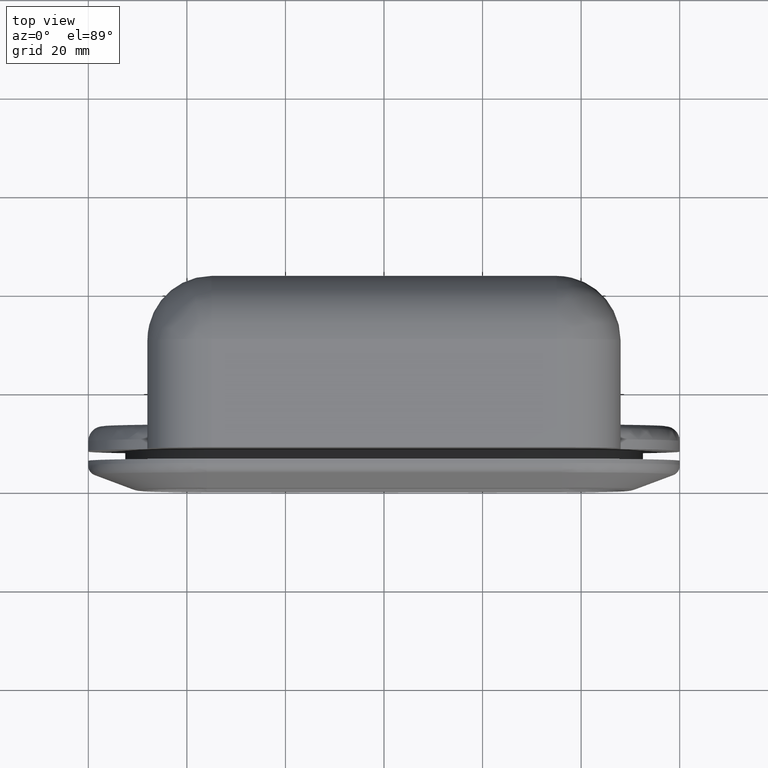
[diagram: clean part render]
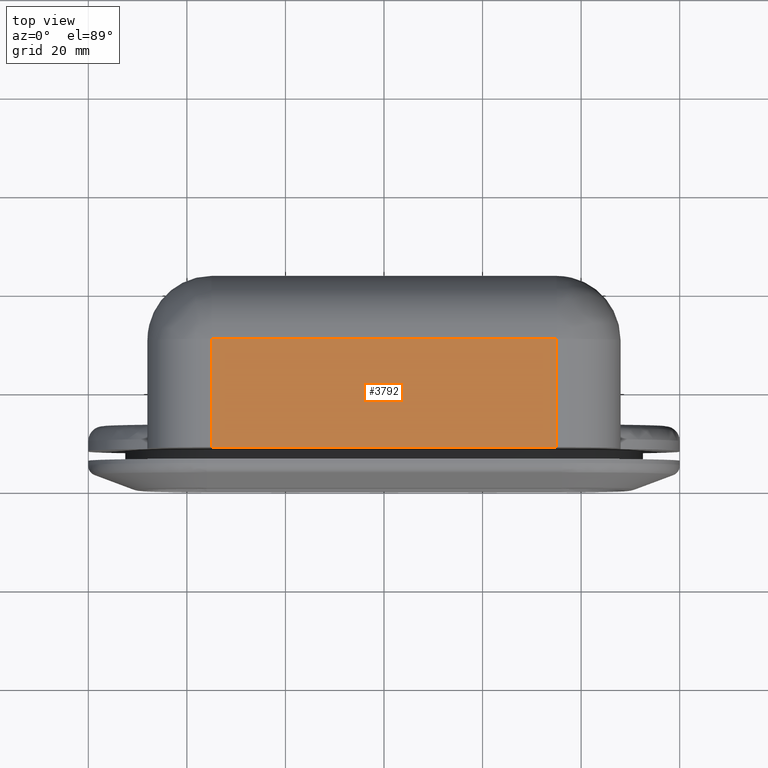
[diagram: same view with one face highlighted and labeled with its STEP entity id]
A machine part, top view. The second image highlights one B-rep face of the part: STEP entity #3792.
In plain terms, the highlighted face is a freeform B-spline surface patch.
Its self-contained STEP definition (entity closure, byte-faithful):
#1883=CARTESIAN_POINT('',(-35.0,8.0,47.0));
#1884=VERTEX_POINT('',#1883);
#1900=CARTESIAN_POINT('',(-35.0,30.0,47.0));
#1901=VERTEX_POINT('',#1900);
#1902=CARTESIAN_POINT('',(-35.0,30.0,47.0));
#1903=CARTESIAN_POINT('',(-35.0,8.0,47.0));
#1904=QUASI_UNIFORM_CURVE('',1,(#1902,#1903),.UNSPECIFIED.,.F.,.U.);
#1905=EDGE_CURVE('',#1901,#1884,#1904,.T.);
#2000=CARTESIAN_POINT('',(35.0,30.0,47.0));
#2001=VERTEX_POINT('',#2000);
#2023=CARTESIAN_POINT('',(35.0,30.0,47.0));
#2024=CARTESIAN_POINT('',(-35.0,30.0,47.0));
#2025=QUASI_UNIFORM_CURVE('',1,(#2023,#2024),.UNSPECIFIED.,.F.,.U.);
#2026=EDGE_CURVE('',#2001,#1901,#2025,.T.);
#2204=CARTESIAN_POINT('',(35.0,8.0,47.0));
#2205=VERTEX_POINT('',#2204);
#2225=CARTESIAN_POINT('',(35.0,8.0,47.0));
#2226=CARTESIAN_POINT('',(35.0,30.0,47.0));
#2227=QUASI_UNIFORM_CURVE('',1,(#2225,#2226),.UNSPECIFIED.,.F.,.U.);
#2228=EDGE_CURVE('',#2205,#2001,#2227,.T.);
#3777=CARTESIAN_POINT('',(-38.496499864326417,6.901100042640270,47.0));
#3778=CARTESIAN_POINT('',(38.496501741872727,6.901100042640270,47.0));
#3779=CARTESIAN_POINT('',(-38.496499864326417,31.098900547445719,47.0));
#3780=CARTESIAN_POINT('',(38.496501741872727,31.098900547445719,47.0));
#3781=B_SPLINE_SURFACE_WITH_KNOTS('',1,1,((#3777,#3779),(#3778,#3780)),.UNSPECIFIED.,.F.,.F.,.U.,(2,2),(2,2),(0.0,76.993001606199158),(0.0,24.197800504805450),.UNSPECIFIED.);
#3782=ORIENTED_EDGE('',*,*,#2026,.T.);
#3783=ORIENTED_EDGE('',*,*,#1905,.T.);
#3784=CARTESIAN_POINT('',(35.0,8.0,47.0));
#3785=CARTESIAN_POINT('',(-35.0,8.0,47.0));
#3786=QUASI_UNIFORM_CURVE('',1,(#3784,#3785),.UNSPECIFIED.,.F.,.U.);
#3787=EDGE_CURVE('',#2205,#1884,#3786,.T.);
#3788=ORIENTED_EDGE('',*,*,#3787,.F.);
#3789=ORIENTED_EDGE('',*,*,#2228,.T.);
#3790=EDGE_LOOP('',(#3782,#3783,#3788,#3789));
#3791=FACE_OUTER_BOUND('',#3790,.T.);
#3792=ADVANCED_FACE('',(#3791),#3781,.T.);